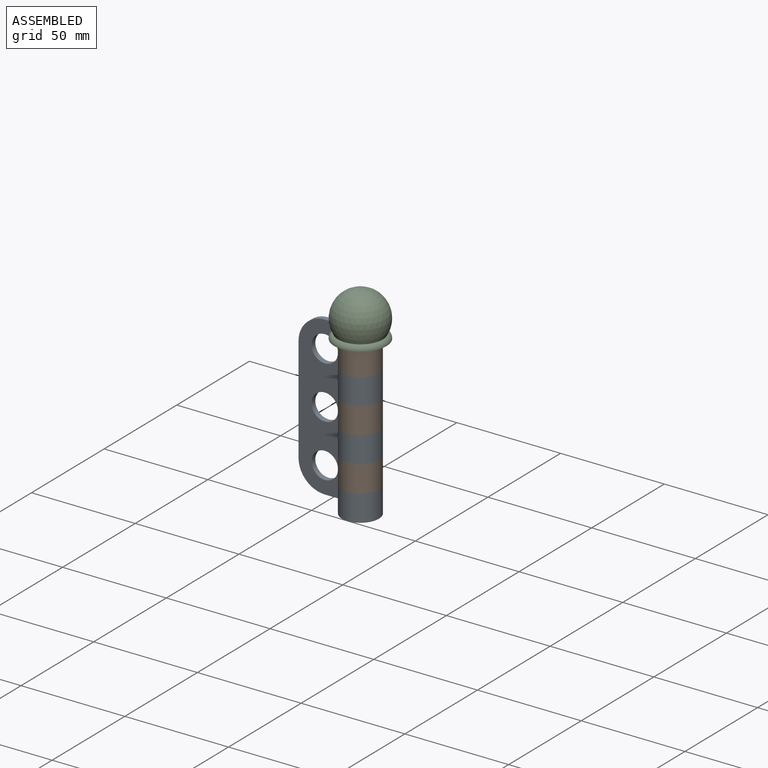
[diagram: assembled view]
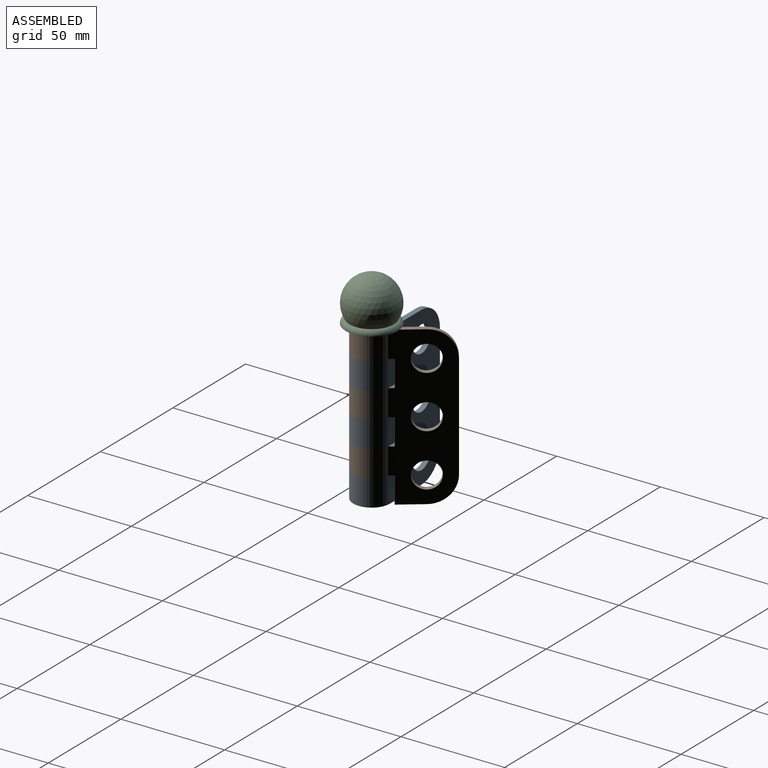
[diagram: assembled view, second angle]
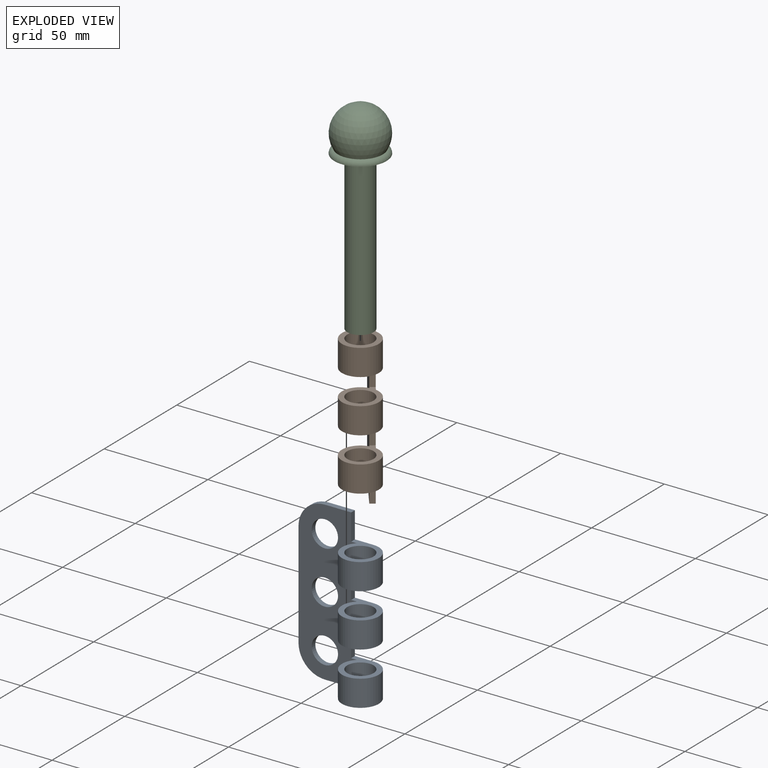
[diagram: exploded view]
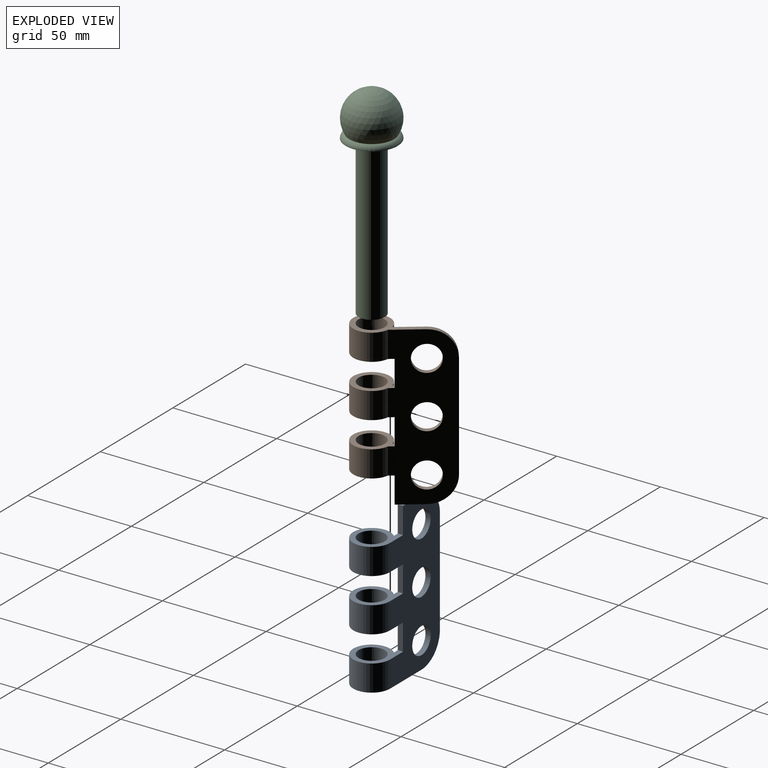
[diagram: exploded view, second angle]
ASSEMBLY  parts=3 mates=2
PART A: 24 faces, bbox 43.2x17.8x76.2 mm
  f0: cylinder r=8.89mm len=17.78mm, axis (0,0,1), area 621.9mm2, adj f3,f4,f12,f16
  f1: cylinder r=8.89mm len=17.78mm, axis (0,0,1), area 621.9mm2, adj f3,f4,f9,f14
  f2: cylinder r=8.89mm len=17.78mm, axis (0,0,1), area 621.9mm2, adj f3,f4,f6,f11
  f3: plane 76.2x28.07mm, normal (0,-1,0), area 1587.9mm2, adj f0,f1,f2,f6,f7,f8,f9,f10
  f4: plane 76.2x34.29mm, normal (0,1,0), area 1824.9mm2, adj f0,f1,f2,f6,f7,f8,f9,f10
  f5: cylinder r=6.35mm len=12.7mm, axis (0,0,1), area 506.7mm2, adj f6,f11
  f6: plane 30.48x17.78mm, normal (0,0,-1), area 165.6mm2, adj f2,f3,f4,f5,f22
  f7: plane 50.8x2.54mm, normal (-1,0,0), area 129mm2, adj f3,f4,f20,f22
  f8: plane 12.7x2.54mm, normal (0,0,1), area 32.3mm2, adj f3,f4,f15,f20
  f9: plane 17.78x17.78mm, normal (0,0,-1), area 133.3mm2, adj f1,f3,f4,f10,f17
  f10: plane 12.7x2.54mm, normal (1,0,0), area 32.3mm2, adj f3,f4,f9,f11
  f11: plane 17.78x17.78mm, normal (0,0,1), area 133.3mm2, adj f2,f3,f4,f5,f10
  f12: plane 17.78x17.78mm, normal (0,0,-1), area 133.3mm2, adj f0,f3,f4,f13,f18
  f13: plane 12.7x2.54mm, normal (1,0,0), area 32.3mm2, adj f3,f4,f12,f14
  f14: plane 17.78x17.78mm, normal (0,0,1), area 133.3mm2, adj f1,f3,f4,f13,f17
  f15: plane 12.7x2.54mm, normal (1,0,0), area 32.3mm2, adj f3,f4,f8,f16
  f16: plane 17.78x17.78mm, normal (0,0,1), area 133.3mm2, adj f0,f3,f4,f15,f18
  f17: cylinder r=6.35mm len=12.7mm, axis (0,0,1), area 506.7mm2, adj f9,f14
  f18: cylinder r=6.35mm len=12.7mm, axis (0,0,1), area 506.7mm2, adj f12,f16
  f19: cylinder r=6.35mm len=12.7mm, axis (0,1,0), area 101.3mm2, adj f3,f4
  f20: cylinder r=12.7mm len=12.7mm, axis (0,1,0), area 50.7mm2, adj f3,f4,f7,f8
  f21: cylinder r=6.35mm len=12.7mm, axis (0,1,0), area 101.3mm2, adj f3,f4
  f22: cylinder r=12.7mm len=12.7mm, axis (0,1,0), area 50.7mm2, adj f3,f4,f6,f7
  f23: cylinder r=6.35mm len=12.7mm, axis (0,1,0), area 101.3mm2, adj f3,f4
PART B: 24 faces, bbox 43.2x17.8x76.2 mm
  f0: plane 17.78x17.78mm, normal (0,0,1), area 125.8mm2, adj f6,f7,f10,f18,f22
  f1: plane 17.78x17.78mm, normal (0,0,-1), area 125.8mm2, adj f6,f7,f10,f20,f21
  f2: plane 17.78x17.78mm, normal (0,0,-1), area 125.8mm2, adj f6,f7,f11,f19,f23
  f3: plane 17.78x17.78mm, normal (0,0,1), area 125.8mm2, adj f6,f7,f12,f19,f23
  f4: plane 17.78x17.78mm, normal (0,0,-1), area 125.8mm2, adj f6,f7,f12,f18,f22
  f5: plane 30.48x17.78mm, normal (0,0,1), area 158.1mm2, adj f6,f7,f17,f20,f21
  f6: plane 76.2x26.26mm, normal (0,-1,0), area 1518.9mm2, adj f0,f1,f2,f3,f4,f5,f8,f9
  f7: plane 76.2x28.07mm, normal (0,1,0), area 1587.9mm2, adj f0,f1,f2,f3,f4,f5,f8,f9
  f8: plane 50.8x2.54mm, normal (-1,0,0), area 129mm2, adj f6,f7,f15,f17
  f9: plane 12.7x2.54mm, normal (0,0,-1), area 32.3mm2, adj f6,f7,f11,f15
  f10: plane 12.7x2.54mm, normal (1,0,0), area 32.3mm2, adj f0,f1,f6,f7
  f11: plane 12.7x2.54mm, normal (1,0,0), area 32.3mm2, adj f2,f6,f7,f9
  f12: plane 12.7x2.54mm, normal (1,0,0), area 32.3mm2, adj f3,f4,f6,f7
  f13: cylinder r=6.35mm len=12.7mm, axis (0,1,0), area 101.3mm2, adj f6,f7
  f14: cylinder r=6.35mm len=12.7mm, axis (0,1,0), area 101.3mm2, adj f6,f7
  f15: cylinder r=12.7mm len=12.7mm, axis (0,1,0), area 50.7mm2, adj f6,f7,f8,f9
  f16: cylinder r=6.35mm len=12.7mm, axis (0,1,0), area 101.3mm2, adj f6,f7
  f17: cylinder r=12.7mm len=12.7mm, axis (0,1,0), area 50.7mm2, adj f5,f6,f7,f8
  f18: cylinder r=8.89mm len=17.78mm, axis (0,0,1), area 669.6mm2, adj f0,f4,f6,f7
  f19: cylinder r=8.89mm len=17.78mm, axis (0,0,1), area 669.6mm2, adj f2,f3,f6,f7
  f20: cylinder r=8.89mm len=17.78mm, axis (0,0,1), area 669.6mm2, adj f1,f5,f6,f7
  f21: cylinder r=6.35mm len=12.7mm, axis (0,0,1), area 506.7mm2, adj f1,f5
  f22: cylinder r=6.35mm len=12.7mm, axis (0,0,1), area 506.7mm2, adj f0,f4
  f23: cylinder r=6.35mm len=12.7mm, axis (0,0,1), area 506.7mm2, adj f2,f3
PART C: 5 faces, bbox 27.2x27.2x97.7 mm
  f0: cylinder r=6.35mm len=76.2mm, axis (0,0,-1), area 3040.2mm2, adj f1,f2
  f1: plane 12.7x12.7mm, normal (0,0,-1), area 126.7mm2, adj f0
  f2: plane 25.14x25.14mm, normal (0,0,-1), area 369.9mm2, adj f0,f3
  f3: torus R=10.03mm, axis (0,0,-1), area 242.1mm2, adj f2,f4
  f4: sphere r=12.57mm, area 1503.7mm2, adj f3
PLACE A t=(-93.94,-27.08,27.4)mm fixed
PLACE B rot(axis=(0,0,-1),53.1deg) t=(-83.8,-22,27.4)mm
PLACE C rot(axis=(0,0,-1),53.1deg) t=(-81.24,-35.97,27.4)mm
MATE fastened C.f0 <-> B.f18  axis (0,0,-1) through (-81.24,-35.97,65.5)mm
MATE revolute A.f0 <-> B.f18  axis (0,0,1) through (-81.24,-35.97,27.4)mm
